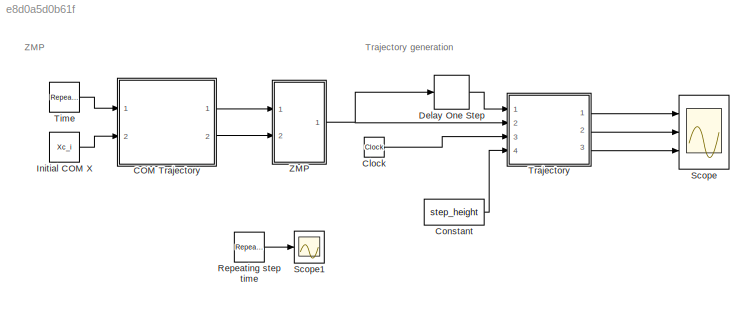
MODEL slx_e8d0a5d0b61f
KIND model
CONFIG AbsTol = auto
CONFIG EnableMultiTasking = off
CONFIG FixedStep = auto
CONFIG MaxStep = auto
CONFIG MinStep = auto
CONFIG RelTol = 1e-3
CONFIG SampleTimeConstraint = Unconstrained
CONFIG Solver = VariableStepAuto
CONFIG SolverName = VariableStepAuto
CONFIG StartTime = 0.0
CONFIG StopTime = 10.0
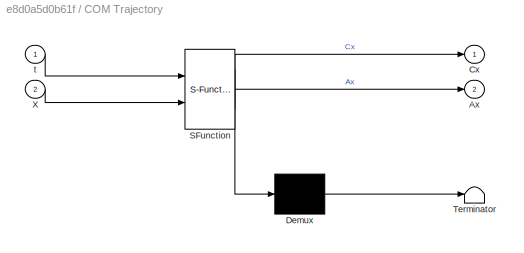
BLOCK [SubSystem] COM Trajectory
  ErrorFcn = Stateflow.Translate.translate
  PermitHierarchicalResolution = ExplicitOnly
  Ports = [2, 2]
  RequestExecContextInheritance = off
  SFBlockType = MATLAB Function
  TreatAsAtomicUnit = on
BLOCK [Demux] COM Trajectory/ Demux 
  Outputs = 1
  Ports = [1, 1]
BLOCK [S-Function] COM Trajectory/ SFunction 
  EnableBusSupport = on
  FunctionName = sf_sfun
  PortCounts = [2 3]
  Ports = [2, 3]
  SFcnIsStateOwnerBlock = off
  SFunctionDeploymentMode = off
  Tag = Stateflow S-Function 4
BLOCK [Terminator] COM Trajectory/ Terminator 
BLOCK [Outport] COM Trajectory/Ax
  Port = 2
BLOCK [Outport] COM Trajectory/Cx
BLOCK [Inport] COM Trajectory/X
  Port = 2
BLOCK [Inport] COM Trajectory/t
BLOCK [Clock] Clock
BLOCK [Constant] Constant
  Value = step_height
BLOCK [Delay] Delay One Step
  DelayLength = 1
  InputPortMap = u0
  Ports = [1, 1]
BLOCK [Constant] Initial COM X
  Value = Xc_i
BLOCK [Reference] Repeating step time  REF=simulink/Sources/Repeating
Sequence
  Ports = [0, 1]
  SourceBlock = simulink/Sources/Repeating\nSequence
  SourceProductBaseCode = SL
  SourceType = Repeating table
BLOCK [Scope] Scope
  Floating = off
  NumInputPorts = 3
  Ports = [3]
  ScopeSpecificationString = Simulink.scopes.TimeScopeBlockCfg('CurrentConfiguration', extmgr.ConfigurationSet(extmgr.Configuration('Core','General UI',true),extmgr.Configuration('Core','Source UI',true),extmgr.Configuration('Sources','WiredSimulink',true),extmgr.Configuration('Visuals','Time Domain',true,'SerializedDisplays',{struct('MinYLimReal','-1.0176','MaxYLimReal','9.1074','YLabelReal','','MinYLimMag','0.00000','MaxYLi...<+1385ch>
BLOCK [Scope] Scope1
  Floating = off
  NumInputPorts = 1
  Ports = [1]
  ScopeSpecificationString = Simulink.scopes.TimeScopeBlockCfg('CurrentConfiguration', extmgr.ConfigurationSet(extmgr.Configuration('Core','General UI',true),extmgr.Configuration('Core','Source UI',true),extmgr.Configuration('Sources','WiredSimulink',true,'DataLoggingVariableName','ScopeData1'),extmgr.Configuration('Visuals','Time Domain',true,'SerializedDisplays',{struct('MinYLimReal','-0.05','MaxYLimReal','0.45','YLabelReal...<+1392ch>
BLOCK [Reference] Time  REF=simulink/Sources/Repeating
Sequence
Stair
  Ports = [0, 1]
  SourceBlock = simulink/Sources/Repeating\nSequence\nStair
  SourceProductBaseCode = SL
  SourceType = Repeating Sequence Stair
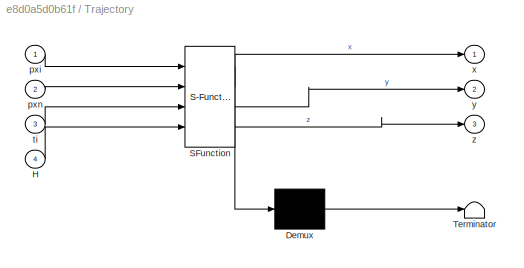
BLOCK [SubSystem] Trajectory
  ErrorFcn = Stateflow.Translate.translate
  PermitHierarchicalResolution = ExplicitOnly
  Ports = [4, 3]
  RequestExecContextInheritance = off
  SFBlockType = MATLAB Function
  TreatAsAtomicUnit = on
BLOCK [Demux] Trajectory/ Demux 
  Outputs = 1
  Ports = [1, 1]
BLOCK [S-Function] Trajectory/ SFunction 
  EnableBusSupport = on
  FunctionName = sf_sfun
  PortCounts = [4 4]
  Ports = [4, 4]
  SFcnIsStateOwnerBlock = off
  SFunctionDeploymentMode = off
  Tag = Stateflow S-Function 2
BLOCK [Terminator] Trajectory/ Terminator 
BLOCK [Inport] Trajectory/H
  Port = 4
BLOCK [Inport] Trajectory/pxi
BLOCK [Inport] Trajectory/pxn
  Port = 2
BLOCK [Inport] Trajectory/ti
  Port = 3
BLOCK [Outport] Trajectory/x
BLOCK [Outport] Trajectory/y
  Port = 2
BLOCK [Outport] Trajectory/z
  Port = 3
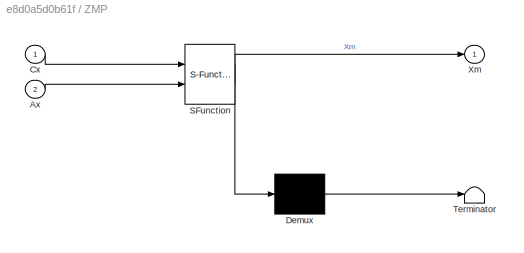
BLOCK [SubSystem] ZMP
  ErrorFcn = Stateflow.Translate.translate
  PermitHierarchicalResolution = ExplicitOnly
  Ports = [2, 1]
  RequestExecContextInheritance = off
  SFBlockType = MATLAB Function
  TreatAsAtomicUnit = on
BLOCK [Demux] ZMP/ Demux 
  Outputs = 1
  Ports = [1, 1]
BLOCK [S-Function] ZMP/ SFunction 
  EnableBusSupport = on
  FunctionName = sf_sfun
  PortCounts = [2 2]
  Ports = [2, 2]
  SFcnIsStateOwnerBlock = off
  SFunctionDeploymentMode = off
  Tag = Stateflow S-Function 3
BLOCK [Terminator] ZMP/ Terminator 
BLOCK [Inport] ZMP/Ax
  Port = 2
BLOCK [Inport] ZMP/Cx
BLOCK [Outport] ZMP/Xm
ANNOTATION (root): Trajectory generation
ANNOTATION (root): ZMP
LINE COM Trajectory:1 -> ZMP:1
LINE COM Trajectory:2 -> ZMP:2
LINE Clock:1 -> Trajectory:3
LINE Constant:1 -> Trajectory:4
LINE Delay One Step:1 -> Trajectory:1
LINE Initial COM X:1 -> COM Trajectory:2
LINE Repeating step time:1 -> Scope1:1
LINE Time:1 -> COM Trajectory:1
LINE Trajectory:1 -> Scope:1
LINE Trajectory:2 -> Scope:2
LINE Trajectory:3 -> Scope:3
NET ZMP:1 -> Delay One Step:1, Trajectory:2
note: NET lines group one-source signal fan-out (src -> all destinations, sorted); 1:1 wires keep LINE
CHART Trajectory states=1 transitions=1
  STATE_LABEL 'eML_blk_kernel()'
  STATE_LABEL 'SCRIPT:\nfunction[x,y,z] = Trajectory(pxi,pxn,ti,H)\n% pxi is cuttrent x position of endpoint\n% pxn is final x position of enpoint\n% ti is the real time\n% H is the height of the step\n\n% These all are in world frame\nstep_time = 0.5;\nx = pxi + sin((pi/2*step_time)*ti)*abs(pxn-pxi);\ny = 0;\nz = sin((pi/step_time)*ti)*(H);'
CHART ZMP states=1 transitions=1
  STATE_LABEL 'eML_blk_kernel()'
  STATE_LABEL 'SCRIPT:\nfunction Xm  = ZMP(Cx,Ax)\n\n% g and h defined in Parameters.m\n% h here is COM height(z-cordinate) from world/path\nh = 0.25;\ng = 9.8066;\nXm = Cx - (h/g)*(Ax);'
CHART COM Trajectory states=1 transitions=1
  STATE_LABEL 'eML_blk_kernel()'
  STATE_LABEL 'SCRIPT:\nfunction[Cx,Ax] = COM_Trajectory(t,X)\n% Here t is sample time\nCx = 0.1*t^2 + X ;\n% Vx = 0.2*t;\nAx = 0.2;'
CHART  states=0 transitions=0
CHART  states=0 transitions=0
CHART  states=0 transitions=0
